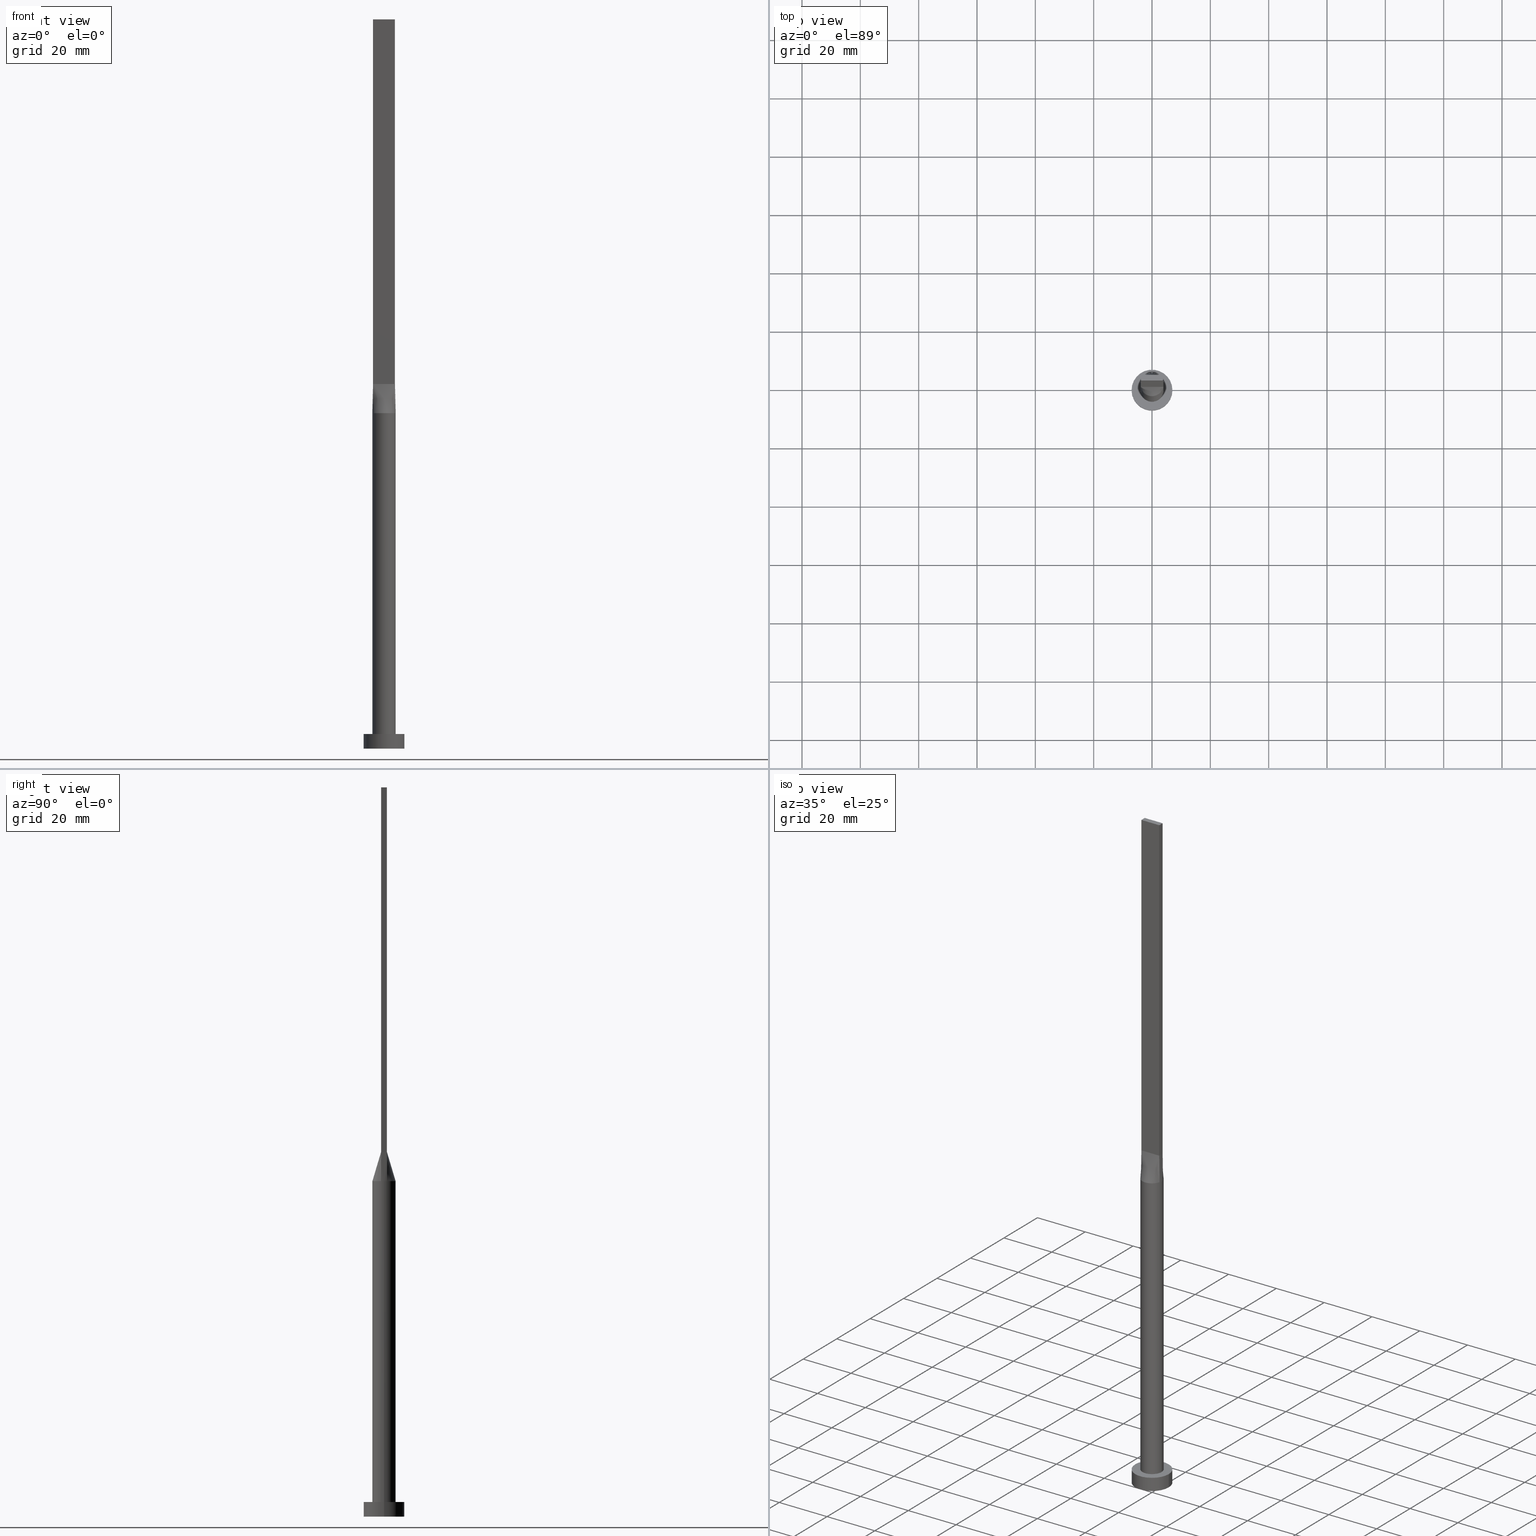
[diagram: canonical four-view strip — front | top / right | iso, engineering-drawing reading convention]
A machine part, canonical four-view strip (front | top / right | iso — engineering-drawing reading convention). The complete STEP part file that produces these views, byte-faithful:
ISO-10303-21;
HEADER;
FILE_DESCRIPTION (( 'STEP AP203' ),
    '1' );
FILE_NAME ('00b3.STEP',
    '2026-02-12T09:03:10',
    ( '' ),
    ( '' ),
    'SwSTEP 2.0',
    'SolidWorks 2019',
    '' );
FILE_SCHEMA (( 'CONFIG_CONTROL_DESIGN' ));
ENDSEC;

DATA;
#1 = CARTESIAN_POINT ( 'NONE',  ( -1.023074425454088221, 3.898373771260455811, 114.9999999999999858 ) ) ;
#2 = VERTEX_POINT ( 'NONE', #522 ) ;
#3 = VECTOR ( 'NONE', #109, 1000.000000000000000 ) ;
#4 = CC_DESIGN_APPROVAL ( #466, ( #446 ) ) ;
#5 = B_SPLINE_SURFACE_WITH_KNOTS ( 'NONE', 3, 1, ( 
 ( #477, #384 ),
 ( #261, #571 ),
 ( #424, #346 ),
 ( #387, #567 ),
 ( #27, #343 ),
 ( #88, #215 ) ),
 .UNSPECIFIED., .F., .F., .F.,
 ( 4, 2, 4 ),
 ( 2, 2 ),
 ( 0.000000000000000000, 0.5000000000000000000, 1.000000000000000000 ),
 ( 0.000000000000000000, 1.000000000000000000 ),
 .UNSPECIFIED. ) ;
#6 = CARTESIAN_POINT ( 'NONE',  ( 3.864939758404985160, 1.030650602241329539, 115.0000000000000000 ) ) ;
#7 = ORIENTED_EDGE ( 'NONE', *, *, #411, .T. ) ;
#8 = EDGE_CURVE ( 'NONE', #170, #438, #572, .T. ) ;
#9 = LINE ( 'NONE', #447, #44 ) ;
#10 = ORIENTED_EDGE ( 'NONE', *, *, #262, .F. ) ;
#11 = CARTESIAN_POINT ( 'NONE',  ( 3.750000000000000000, 1.000000000000000000, 250.0000000000000000 ) ) ;
#12 = LINE ( 'NONE', #400, #417 ) ;
#13 = CARTESIAN_POINT ( 'NONE',  ( 2.500000000000000444, -0.9999999999999995559, 125.0000000000000000 ) ) ;
#14 = EDGE_CURVE ( 'NONE', #131, #164, #575, .T. ) ;
#15 = CARTESIAN_POINT ( 'NONE',  ( 0.000000000000000000, 0.000000000000000000, 0.000000000000000000 ) ) ;
#16 = ORIENTED_EDGE ( 'NONE', *, *, #213, .F. ) ;
#17 = DIRECTION ( 'NONE',  ( -0.000000000000000000, -0.000000000000000000, -1.000000000000000000 ) ) ;
#18 = DATE_TIME_ROLE ( 'creation_date' ) ;
#19 = DIRECTION ( 'NONE',  ( 1.000000000000000000, -8.673617379884035472E-17, 0.000000000000000000 ) ) ;
#20 = APPROVAL_DATE_TIME ( #431, #323 ) ;
#21 = VECTOR ( 'NONE', #212, 1000.000000000000114 ) ;
#22 = DIRECTION ( 'NONE',  ( -1.000000000000000000, -0.000000000000000000, -0.000000000000000000 ) ) ;
#23 = ADVANCED_FACE ( 'NONE', ( #483, #451 ), #320, .T. ) ;
#24 = LINE ( 'NONE', #342, #372 ) ;
#25 = DIRECTION ( 'NONE',  ( 0.000000000000000000, 0.000000000000000000, 1.000000000000000000 ) ) ;
#26 = CARTESIAN_POINT ( 'NONE',  ( 0.000000000000000000, 0.000000000000000000, 0.000000000000000000 ) ) ;
#27 = CARTESIAN_POINT ( 'NONE',  ( -3.953459813730020311, -0.6987003947724488295, 115.0000000000000142 ) ) ;
#28 = CARTESIAN_POINT ( 'NONE',  ( 3.750000000000000000, 1.000000000000000000, 125.0000000000000000 ) ) ;
#29 = DIRECTION ( 'NONE',  ( 1.000000000000000000, 0.000000000000000000, 0.000000000000000000 ) ) ;
#30 = EDGE_CURVE ( 'NONE', #131, #538, #227, .T. ) ;
#31 = CARTESIAN_POINT ( 'NONE',  ( -3.750000000000000000, 1.000000000000000000, 125.0000000000000000 ) ) ;
#32 = VECTOR ( 'NONE', #443, 1000.000000000000114 ) ;
#33 = ORIENTED_EDGE ( 'NONE', *, *, #504, .T. ) ;
#34 = SECURITY_CLASSIFICATION ( '', '', #289 ) ;
#35 = PERSON ( 'NEUR�EN�', 'NEUR�EN�', 'NEUR�EN�', ('NEUR�EN�'), ('NEUR�EN�'), ('NEUR�EN�') ) ;
#36 = CARTESIAN_POINT ( 'NONE',  ( 0.000000000000000000, 0.000000000000000000, 5.000000000000000000 ) ) ;
#37 = LINE ( 'NONE', #389, #294 ) ;
#38 = ORIENTED_EDGE ( 'NONE', *, *, #59, .F. ) ;
#39 = LINE ( 'NONE', #82, #383 ) ;
#40 = ORIENTED_EDGE ( 'NONE', *, *, #524, .T. ) ;
#41 = CC_DESIGN_PERSON_AND_ORGANIZATION_ASSIGNMENT ( #559, #467, ( #542 ) ) ;
#42 = CARTESIAN_POINT ( 'NONE',  ( 0.000000000000000000, 0.000000000000000000, 115.0000000000000000 ) ) ;
#43 = ORIENTED_EDGE ( 'NONE', *, *, #185, .T. ) ;
#44 = VECTOR ( 'NONE', #178, 1000.000000000000000 ) ;
#45 = DIRECTION ( 'NONE',  ( -0.000000000000000000, -0.000000000000000000, -1.000000000000000000 ) ) ;
#46 = ORIENTED_EDGE ( 'NONE', *, *, #156, .F. ) ;
#47 = ORIENTED_EDGE ( 'NONE', *, *, #175, .T. ) ;
#48 = CARTESIAN_POINT ( 'NONE',  ( 3.009488128496037085, 2.672487015486669115, 114.9999999999999858 ) ) ;
#49 = EDGE_CURVE ( 'NONE', #119, #58, #9, .T. ) ;
#50 = FACE_OUTER_BOUND ( 'NONE', #281, .T. ) ;
#51 = VECTOR ( 'NONE', #45, 1000.000000000000000 ) ;
#52 = LOCAL_TIME ( 10, 3, 10.00000000000000000, #116 ) ;
#53 = B_SPLINE_SURFACE_WITH_KNOTS ( 'NONE', 3, 1, ( 
 ( #6, #224 ),
 ( #226, #183 ),
 ( #361, #271 ),
 ( #543, #135 ),
 ( #48, #231 ),
 ( #277, #498 ),
 ( #315, #398 ),
 ( #317, #580 ),
 ( #357, #537 ),
 ( #455, #534 ),
 ( #1, #187 ),
 ( #104, #324 ),
 ( #136, #275 ),
 ( #354, #144 ),
 ( #360, #57 ),
 ( #501, #176 ),
 ( #132, #491 ),
 ( #314, #489 ) ),
 .UNSPECIFIED., .F., .F., .F.,
 ( 4, 2, 2, 2, 2, 2, 2, 2, 4 ),
 ( 2, 2 ),
 ( 0.000000000000000000, 0.1250000000000000000, 0.2500000000000000000, 0.3750000000000000000, 0.5000000000000000000, 0.6250000000000000000, 0.7500000000000000000, 0.8750000000000000000, 1.000000000000000000 ),
 ( 0.000000000000000000, 1.000000000000000000 ),
 .UNSPECIFIED. ) ;
#54 = CARTESIAN_POINT ( 'NONE',  ( -3.750000000000000000, 1.000000000000000000, 250.0000000000000000 ) ) ;
#55 = VERTEX_POINT ( 'NONE', #395 ) ;
#56 = CARTESIAN_POINT ( 'NONE',  ( 3.437500000000000000, -0.9999999999999995559, 125.0000000000000000 ) ) ;
#57 = CARTESIAN_POINT ( 'NONE',  ( -2.499999999999997780, 1.000000000000000000, 125.0000000000000000 ) ) ;
#58 = VERTEX_POINT ( 'NONE', #141 ) ;
#59 = EDGE_CURVE ( 'NONE', #347, #303, #493, .T. ) ;
#60 = B_SPLINE_SURFACE_WITH_KNOTS ( 'NONE', 3, 1, ( 
 ( #434, #339 ),
 ( #118, #297 ),
 ( #233, #319 ),
 ( #274, #550 ),
 ( #145, #533 ),
 ( #450, #369 ),
 ( #326, #325 ),
 ( #66, #407 ),
 ( #459, #549 ),
 ( #101, #193 ),
 ( #238, #280 ),
 ( #544, #149 ),
 ( #502, #394 ),
 ( #108, #276 ),
 ( #221, #13 ),
 ( #579, #362 ),
 ( #410, #56 ),
 ( #235, #143 ) ),
 .UNSPECIFIED., .F., .F., .F.,
 ( 4, 2, 2, 2, 2, 2, 2, 2, 4 ),
 ( 2, 2 ),
 ( 0.000000000000000000, 0.1250000000000000000, 0.2500000000000000000, 0.3750000000000000000, 0.5000000000000000000, 0.6250000000000000000, 0.7500000000000000000, 0.8750000000000000000, 1.000000000000000000 ),
 ( 0.000000000000000000, 1.000000000000000000 ),
 .UNSPECIFIED. ) ;
#61 = CYLINDRICAL_SURFACE ( 'NONE', #305, 7.000000000000000000 ) ;
#62 = DIRECTION ( 'NONE',  ( 1.000000000000000000, 0.000000000000000000, -0.000000000000000000 ) ) ;
#63 = DIRECTION ( 'NONE',  ( -1.000000000000000000, 0.000000000000000000, 0.000000000000000000 ) ) ;
#64 = AXIS2_PLACEMENT_3D ( 'NONE', #217, #392, #251 ) ;
#65 = PERSON_AND_ORGANIZATION ( #35, #208 ) ;
#66 = CARTESIAN_POINT ( 'NONE',  ( -1.023074425454088887, -3.898373771260456255, 114.9999999999999858 ) ) ;
#67 = CALENDAR_DATE ( 2026, 12, 2 ) ;
#68 = FACE_OUTER_BOUND ( 'NONE', #210, .T. ) ;
#69 = PERSON_AND_ORGANIZATION_ROLE ( 'design_supplier' ) ;
#70 = ADVANCED_FACE ( 'NONE', ( #50 ), #53, .T. ) ;
#71 = MECHANICAL_CONTEXT ( 'NONE', #565, 'mechanical' ) ;
#72 = DIRECTION ( 'NONE',  ( 1.000000000000000000, 0.000000000000000000, 0.000000000000000000 ) ) ;
#73 = ORIENTED_EDGE ( 'NONE', *, *, #229, .T. ) ;
#74 = AXIS2_PLACEMENT_3D ( 'NONE', #42, #309, #437 ) ;
#75 = CARTESIAN_POINT ( 'NONE',  ( -3.865236553917747120, 1.030730781768519622, 115.0000000000000000 ) ) ;
#76 = DIRECTION ( 'NONE',  ( 1.000000000000000000, -8.673617379884035472E-17, 0.000000000000000000 ) ) ;
#77 = DIRECTION ( 'NONE',  ( 0.000000000000000000, 0.000000000000000000, 1.000000000000000000 ) ) ;
#78 = DIRECTION ( 'NONE',  ( 0.000000000000000000, -1.000000000000000000, 0.000000000000000000 ) ) ;
#79 = ORIENTED_EDGE ( 'NONE', *, *, #191, .F. ) ;
#80 = FACE_OUTER_BOUND ( 'NONE', #99, .T. ) ;
#81 = CALENDAR_DATE ( 2026, 12, 2 ) ;
#82 = CARTESIAN_POINT ( 'NONE',  ( -3.750000000000000000, -0.9999999999999991118, 125.0000000000000000 ) ) ;
#83 = AXIS2_PLACEMENT_3D ( 'NONE', #114, #155, #196 ) ;
#84 = ORIENTED_EDGE ( 'NONE', *, *, #576, .T. ) ;
#85 = CC_DESIGN_SECURITY_CLASSIFICATION ( #34, ( #446 ) ) ;
#86 = FACE_OUTER_BOUND ( 'NONE', #358, .T. ) ;
#87 = ORIENTED_EDGE ( 'NONE', *, *, #140, .T. ) ;
#88 = CARTESIAN_POINT ( 'NONE',  ( -3.864939758404985604, -1.030650602241328428, 115.0000000000000000 ) ) ;
#89 = EDGE_LOOP ( 'NONE', ( #84, #38, #540, #367 ) ) ;
#90 = DIRECTION ( 'NONE',  ( -1.000000000000000000, 0.000000000000000000, 0.000000000000000000 ) ) ;
#91 = ORIENTED_EDGE ( 'NONE', *, *, #140, .F. ) ;
#92 = ORIENTED_EDGE ( 'NONE', *, *, #270, .T. ) ;
#93 = VECTOR ( 'NONE', #546, 1000.000000000000000 ) ;
#94 = LINE ( 'NONE', #267, #32 ) ;
#95 = EDGE_CURVE ( 'NONE', #474, #303, #94, .T. ) ;
#96 = LINE ( 'NONE', #268, #365 ) ;
#97 = ORIENTED_EDGE ( 'NONE', *, *, #59, .T. ) ;
#98 = CARTESIAN_POINT ( 'NONE',  ( 0.000000000000000000, 0.000000000000000000, 5.000000000000000000 ) ) ;
#99 = EDGE_LOOP ( 'NONE', ( #43, #173, #499, #406 ) ) ;
#100 = AXIS2_PLACEMENT_3D ( 'NONE', #569, #526, #126 ) ;
#101 = CARTESIAN_POINT ( 'NONE',  ( 0.5121855420560003092, -3.999999999999999112, 114.9999999999999858 ) ) ;
#102 = MANIFOLD_SOLID_BREP ( 'P�idat vysunut�m5', #234 ) ;
#103 = EDGE_CURVE ( 'NONE', #164, #562, #96, .T. ) ;
#104 = CARTESIAN_POINT ( 'NONE',  ( -1.940702937457743138, 3.532374760555930582, 114.9999999999999858 ) ) ;
#105 = VERTEX_POINT ( 'NONE', #405 ) ;
#106 = CYLINDRICAL_SURFACE ( 'NONE', #150, 4.000000000000000000 ) ;
#107 = DIRECTION ( 'NONE',  ( -0.000000000000000000, -0.000000000000000000, -1.000000000000000000 ) ) ;
#108 = CARTESIAN_POINT ( 'NONE',  ( 3.009488128496036641, -2.672487015486668671, 114.9999999999999858 ) ) ;
#109 = DIRECTION ( 'NONE',  ( -1.000000000000000000, 0.000000000000000000, 0.000000000000000000 ) ) ;
#110 = AXIS2_PLACEMENT_3D ( 'NONE', #381, #334, #513 ) ;
#111 = CARTESIAN_POINT ( 'NONE',  ( -2.346407003458401253, 3.270103945996944095, 114.9999999999999858 ) ) ;
#112 = EDGE_CURVE ( 'NONE', #55, #122, #12, .T. ) ;
#113 = CALENDAR_DATE ( 2026, 12, 2 ) ;
#114 = CARTESIAN_POINT ( 'NONE',  ( 3.750000000000000000, -0.9999999999999997780, 250.0000000000000000 ) ) ;
#115 = CARTESIAN_POINT ( 'NONE',  ( 3.864939758404985160, 1.030650602241328873, 115.0000000000000000 ) ) ;
#116 = COORDINATED_UNIVERSAL_TIME_OFFSET ( 1, 0, .AHEAD. ) ;
#117 = CARTESIAN_POINT ( 'NONE',  ( 0.000000000000000000, 0.000000000000000000, 5.000000000000000000 ) ) ;
#118 = CARTESIAN_POINT ( 'NONE',  ( -3.781952206537765981, -1.341853921743402900, 114.9999999999999858 ) ) ;
#119 = VERTEX_POINT ( 'NONE', #539 ) ;
#120 = CARTESIAN_POINT ( 'NONE',  ( 3.999999999999999112, 0.3494497975066819251, 114.9999999999999858 ) ) ;
#121 = CARTESIAN_POINT ( 'NONE',  ( 7.000000000000000000, 8.572527594031473190E-16, 5.000000000000000000 ) ) ;
#122 = VERTEX_POINT ( 'NONE', #415 ) ;
#123 = CARTESIAN_POINT ( 'NONE',  ( -3.865236553917747120, 1.030730781768519622, 115.0000000000000000 ) ) ;
#124 = CARTESIAN_POINT ( 'NONE',  ( 3.865212754195084699, 1.030724393897464841, 115.0000000000000000 ) ) ;
#125 = AXIS2_PLACEMENT_3D ( 'NONE', #302, #172, #258 ) ;
#126 = DIRECTION ( 'NONE',  ( 1.000000000000000000, 0.000000000000000000, 0.000000000000000000 ) ) ;
#127 =( GEOMETRIC_REPRESENTATION_CONTEXT ( 3 ) GLOBAL_UNCERTAINTY_ASSIGNED_CONTEXT ( ( #573 ) ) GLOBAL_UNIT_ASSIGNED_CONTEXT ( ( #192, #249, #336 ) ) REPRESENTATION_CONTEXT ( 'NONE', 'WORKASPACE' ) );
#128 = ADVANCED_FACE ( 'NONE', ( #375 ), #556, .T. ) ;
#129 = CARTESIAN_POINT ( 'NONE',  ( 4.000000000000000000, -1.256865613583667397E-17, 114.9999999999999858 ) ) ;
#130 = DIRECTION ( 'NONE',  ( -0.000000000000000000, 1.000000000000000000, -0.000000000000000000 ) ) ;
#131 = VERTEX_POINT ( 'NONE', #129 ) ;
#132 = CARTESIAN_POINT ( 'NONE',  ( -3.781952206537765537, 1.341853921743403788, 115.0000000000000284 ) ) ;
#133 = VECTOR ( 'NONE', #409, 1000.000000000000000 ) ;
#134 = VECTOR ( 'NONE', #160, 1000.000000000000000 ) ;
#135 = CARTESIAN_POINT ( 'NONE',  ( 2.500000000000001776, 1.000000000000000000, 125.0000000000000000 ) ) ;
#136 = CARTESIAN_POINT ( 'NONE',  ( -2.346407003458401253, 3.270103945996944095, 114.9999999999999858 ) ) ;
#137 = ORIENTED_EDGE ( 'NONE', *, *, #363, .T. ) ;
#138 = B_SPLINE_SURFACE_WITH_KNOTS ( 'NONE', 3, 1, ( 
 ( #199, #299 ),
 ( #511, #421 ),
 ( #376, #296 ),
 ( #120, #570 ),
 ( #471, #386 ),
 ( #115, #206 ) ),
 .UNSPECIFIED., .F., .F., .F.,
 ( 4, 2, 4 ),
 ( 2, 2 ),
 ( 0.000000000000000000, 0.5000000000000000000, 1.000000000000000000 ),
 ( 0.000000000000000000, 1.000000000000000000 ),
 .UNSPECIFIED. ) ;
#139 = DIRECTION ( 'NONE',  ( -0.000000000000000000, -0.000000000000000000, -1.000000000000000000 ) ) ;
#140 = EDGE_CURVE ( 'NONE', #492, #170, #245, .T. ) ;
#141 = CARTESIAN_POINT ( 'NONE',  ( -7.000000000000000000, 0.000000000000000000, 0.000000000000000000 ) ) ;
#142 = VECTOR ( 'NONE', #530, 1000.000000000000000 ) ;
#143 = CARTESIAN_POINT ( 'NONE',  ( 3.750000000000000000, -0.9999999999999997780, 125.0000000000000000 ) ) ;
#144 = CARTESIAN_POINT ( 'NONE',  ( -2.187499999999997780, 1.000000000000000000, 125.0000000000000000 ) ) ;
#145 = CARTESIAN_POINT ( 'NONE',  ( -3.009488128496037529, -2.672487015486668227, 114.9999999999999858 ) ) ;
#146 = LINE ( 'NONE', #263, #133 ) ;
#147 = CARTESIAN_POINT ( 'NONE',  ( -3.750000000000000000, 1.000000000000000000, 250.0000000000000000 ) ) ;
#148 = ADVANCED_FACE ( 'NONE', ( #86 ), #521, .F. ) ;
#149 = CARTESIAN_POINT ( 'NONE',  ( 1.249999999999999778, -0.9999999999999995559, 125.0000000000000000 ) ) ;
#150 = AXIS2_PLACEMENT_3D ( 'NONE', #404, #285, #322 ) ;
#151 = VECTOR ( 'NONE', #22, 1000.000000000000000 ) ;
#152 = FACE_OUTER_BOUND ( 'NONE', #308, .T. ) ;
#153 = COORDINATED_UNIVERSAL_TIME_OFFSET ( 1, 0, .AHEAD. ) ;
#154 = CARTESIAN_POINT ( 'NONE',  ( 0.000000000000000000, 0.000000000000000000, 115.0000000000000000 ) ) ;
#155 = DIRECTION ( 'NONE',  ( -1.000000000000000000, 0.000000000000000000, 0.000000000000000000 ) ) ;
#156 = EDGE_CURVE ( 'NONE', #55, #438, #312, .T. ) ;
#157 = PERSON_AND_ORGANIZATION ( #35, #208 ) ;
#158 = CARTESIAN_POINT ( 'NONE',  ( 1.940702937457743582, 3.532374760555930582, 115.0000000000000000 ) ) ;
#159 = AXIS2_PLACEMENT_3D ( 'NONE', #382, #374, #72 ) ;
#160 = DIRECTION ( 'NONE',  ( 0.000000000000000000, -1.000000000000000000, 0.000000000000000000 ) ) ;
#161 = CARTESIAN_POINT ( 'NONE',  ( 3.807469879202492802, -1.015325301120664214, 120.0000000000000000 ) ) ;
#162 = PLANE ( 'NONE',  #256 ) ;
#163 = FACE_OUTER_BOUND ( 'NONE', #448, .T. ) ;
#164 = VERTEX_POINT ( 'NONE', #124 ) ;
#165 = CARTESIAN_POINT ( 'NONE',  ( -3.267840578657194239, 2.338604872288698289, 114.9999999999999858 ) ) ;
#166 = CARTESIAN_POINT ( 'NONE',  ( 3.750000000000000000, 1.000000000000000000, 250.0000000000000000 ) ) ;
#167 = ORIENTED_EDGE ( 'NONE', *, *, #397, .F. ) ;
#168 = EDGE_CURVE ( 'NONE', #474, #105, #218, .T. ) ;
#169 = DIRECTION ( 'NONE',  ( 0.000000000000000000, -0.000000000000000000, -1.000000000000000000 ) ) ;
#170 = VERTEX_POINT ( 'NONE', #426 ) ;
#171 = DESIGN_CONTEXT ( 'detailed design', #449, 'design' ) ;
#172 = DIRECTION ( 'NONE',  ( 0.000000000000000000, 0.000000000000000000, 1.000000000000000000 ) ) ;
#173 = ORIENTED_EDGE ( 'NONE', *, *, #340, .F. ) ;
#174 = LINE ( 'NONE', #11, #3 ) ;
#175 = EDGE_CURVE ( 'NONE', #105, #506, #37, .T. ) ;
#176 = CARTESIAN_POINT ( 'NONE',  ( -3.124999999999998668, 1.000000000000000000, 125.0000000000000000 ) ) ;
#177 = ORIENTED_EDGE ( 'NONE', *, *, #333, .T. ) ;
#178 = DIRECTION ( 'NONE',  ( -0.000000000000000000, -0.000000000000000000, -1.000000000000000000 ) ) ;
#179 = ORIENTED_EDGE ( 'NONE', *, *, #524, .F. ) ;
#180 = AXIS2_PLACEMENT_3D ( 'NONE', #166, #78, #169 ) ;
#181 = APPROVAL_PERSON_ORGANIZATION ( #203, #323, #241 ) ;
#182 = DIRECTION ( 'NONE',  ( 0.000000000000000000, 1.000000000000000000, 0.000000000000000000 ) ) ;
#183 = CARTESIAN_POINT ( 'NONE',  ( 3.437500000000000444, 1.000000000000000000, 125.0000000000000000 ) ) ;
#184 = ORIENTED_EDGE ( 'NONE', *, *, #49, .F. ) ;
#185 = EDGE_CURVE ( 'NONE', #438, #562, #209, .T. ) ;
#186 = CARTESIAN_POINT ( 'NONE',  ( -3.750000000000000000, 1.000000000000000000, 250.0000000000000000 ) ) ;
#187 = CARTESIAN_POINT ( 'NONE',  ( -0.6249999999999966693, 1.000000000000000000, 125.0000000000000000 ) ) ;
#188 = VECTOR ( 'NONE', #577, 1000.000000000000000 ) ;
#189 = CARTESIAN_POINT ( 'NONE',  ( 3.750000000000000000, 1.000000000000000000, 250.0000000000000000 ) ) ;
#190 = FACE_OUTER_BOUND ( 'NONE', #259, .T. ) ;
#191 = EDGE_CURVE ( 'NONE', #303, #393, #484, .T. ) ;
#192 =( LENGTH_UNIT ( ) NAMED_UNIT ( * ) SI_UNIT ( .MILLI., .METRE. ) );
#193 = CARTESIAN_POINT ( 'NONE',  ( 0.3125000000000000000, -0.9999999999999995559, 125.0000000000000000 ) ) ;
#194 = SHAPE_DEFINITION_REPRESENTATION ( #273, #454 ) ;
#195 = APPLICATION_PROTOCOL_DEFINITION ( 'international standard', 'config_control_design', 1994, #565 ) ;
#196 = DIRECTION ( 'NONE',  ( 0.000000000000000000, 0.000000000000000000, 1.000000000000000000 ) ) ;
#197 = AXIS2_PLACEMENT_3D ( 'NONE', #147, #246, #205 ) ;
#198 = AXIS2_PLACEMENT_3D ( 'NONE', #290, #25, #416 ) ;
#199 = CARTESIAN_POINT ( 'NONE',  ( 3.864939758404985160, -1.030650602241329539, 115.0000000000000000 ) ) ;
#200 = PRODUCT_DEFINITION ( 'NEZN�M�', '', #446, #171 ) ;
#201 = PERSON_AND_ORGANIZATION ( #35, #208 ) ;
#202 = CARTESIAN_POINT ( 'NONE',  ( 3.781952206537764205, 1.341853921743403788, 114.9999999999999858 ) ) ;
#203 = PERSON_AND_ORGANIZATION ( #35, #208 ) ;
#204 = PLANE ( 'NONE',  #180 ) ;
#205 = DIRECTION ( 'NONE',  ( -0.000000000000000000, 0.000000000000000000, -1.000000000000000000 ) ) ;
#206 = CARTESIAN_POINT ( 'NONE',  ( 3.750000000000000000, 1.000000000000000000, 125.0000000000000000 ) ) ;
#207 = AXIS2_PLACEMENT_3D ( 'NONE', #564, #554, #243 ) ;
#208 = ORGANIZATION ( 'NEUR�EN�', 'NEUR�EN�', '' ) ;
#209 = LINE ( 'NONE', #351, #515 ) ;
#210 = EDGE_LOOP ( 'NONE', ( #341, #318, #390, #352, #272 ) ) ;
#211 = DIRECTION ( 'NONE',  ( 1.000000000000000000, 0.000000000000000000, -0.000000000000000000 ) ) ;
#212 = DIRECTION ( 'NONE',  ( -0.01149316269309400701, -0.003064843384825017159, -0.9999292544707033548 ) ) ;
#213 = EDGE_CURVE ( 'NONE', #393, #438, #39, .T. ) ;
#214 = ORIENTED_EDGE ( 'NONE', *, *, #112, .T. ) ;
#215 = CARTESIAN_POINT ( 'NONE',  ( -3.750000000000000000, -0.9999999999999991118, 125.0000000000000000 ) ) ;
#216 = ORIENTED_EDGE ( 'NONE', *, *, #8, .T. ) ;
#217 = CARTESIAN_POINT ( 'NONE',  ( -3.750000000000000000, -0.9999999999999991118, 250.0000000000000000 ) ) ;
#218 = CIRCLE ( 'NONE', #125, 4.000000000000000000 ) ;
#219 = ORIENTED_EDGE ( 'NONE', *, *, #49, .T. ) ;
#220 = PRODUCT_RELATED_PRODUCT_CATEGORY ( 'detail', '', ( #542 ) ) ;
#221 = CARTESIAN_POINT ( 'NONE',  ( 3.267840578657194239, -2.338604872288699177, 114.9999999999999858 ) ) ;
#222 = ORIENTED_EDGE ( 'NONE', *, *, #95, .T. ) ;
#223 = ORIENTED_EDGE ( 'NONE', *, *, #316, .T. ) ;
#224 = CARTESIAN_POINT ( 'NONE',  ( 3.750000000000000000, 1.000000000000000000, 125.0000000000000000 ) ) ;
#225 = ORIENTED_EDGE ( 'NONE', *, *, #95, .F. ) ;
#226 = CARTESIAN_POINT ( 'NONE',  ( 3.781952206537764205, 1.341853921743403788, 114.9999999999999858 ) ) ;
#227 = LINE ( 'NONE', #402, #93 ) ;
#228 = VERTEX_POINT ( 'NONE', #121 ) ;
#229 = EDGE_CURVE ( 'NONE', #393, #492, #248, .T. ) ;
#230 = CYLINDRICAL_SURFACE ( 'NONE', #283, 7.000000000000000000 ) ;
#231 = CARTESIAN_POINT ( 'NONE',  ( 2.187500000000002220, 1.000000000000000000, 125.0000000000000000 ) ) ;
#232 = ORIENTED_EDGE ( 'NONE', *, *, #175, .F. ) ;
#233 = CARTESIAN_POINT ( 'NONE',  ( -3.653499896451231521, -1.673258289339057514, 115.0000000000000142 ) ) ;
#234 = CLOSED_SHELL ( 'NONE', ( #300, #292, #359, #23, #568, #128, #279, #371, #242, #70, #255, #541, #148, #435, #481 ) ) ;
#235 = CARTESIAN_POINT ( 'NONE',  ( 3.864939758404985604, -1.030650602241328873, 115.0000000000000000 ) ) ;
#236 = APPROVAL ( #503, 'NEUR�EN�' ) ;
#237 = COORDINATED_UNIVERSAL_TIME_OFFSET ( 1, 0, .AHEAD. ) ;
#238 = CARTESIAN_POINT ( 'NONE',  ( 1.023074425454087555, -3.898373771260455811, 114.9999999999999858 ) ) ;
#239 = CARTESIAN_POINT ( 'NONE',  ( -3.009488128496037529, 2.672487015486668671, 114.9999999999999858 ) ) ;
#240 = ORIENTED_EDGE ( 'NONE', *, *, #442, .F. ) ;
#241 = APPROVAL_ROLE ( '' ) ;
#242 = ADVANCED_FACE ( 'NONE', ( #163 ), #5, .T. ) ;
#243 = DIRECTION ( 'NONE',  ( 1.000000000000000000, -6.217248937900876626E-15, 0.000000000000000000 ) ) ;
#244 = ORIENTED_EDGE ( 'NONE', *, *, #397, .T. ) ;
#245 = CIRCLE ( 'NONE', #74, 4.000000000000000000 ) ;
#246 = DIRECTION ( 'NONE',  ( 1.000000000000000000, 0.000000000000000000, -0.000000000000000000 ) ) ;
#247 = CARTESIAN_POINT ( 'NONE',  ( 3.865212754195084699, 1.030724393897464841, 115.0000000000000000 ) ) ;
#248 = LINE ( 'NONE', #349, #21 ) ;
#249 =( NAMED_UNIT ( * ) PLANE_ANGLE_UNIT ( ) SI_UNIT ( $, .RADIAN. ) );
#250 = CARTESIAN_POINT ( 'NONE',  ( 3.653499896451231521, 1.673258289339057958, 115.0000000000000142 ) ) ;
#251 = DIRECTION ( 'NONE',  ( -1.000000000000000000, 8.673617379884035472E-17, 0.000000000000000000 ) ) ;
#252 = ORIENTED_EDGE ( 'NONE', *, *, #460, .F. ) ;
#253 = CARTESIAN_POINT ( 'NONE',  ( -0.5121855420560009753, 4.000000000000000888, 114.9999999999999858 ) ) ;
#254 = PERSON_AND_ORGANIZATION_ROLE ( 'classification_officer' ) ;
#255 = ADVANCED_FACE ( 'NONE', ( #482 ), #204, .F. ) ;
#256 = AXIS2_PLACEMENT_3D ( 'NONE', #413, #291, #211 ) ;
#257 = CC_DESIGN_APPROVAL ( #323, ( #34 ) ) ;
#258 = DIRECTION ( 'NONE',  ( 1.000000000000000000, 0.000000000000000000, 0.000000000000000000 ) ) ;
#259 = EDGE_LOOP ( 'NONE', ( #494, #298, #344, #232, #581, #179 ) ) ;
#260 = FACE_OUTER_BOUND ( 'NONE', #266, .T. ) ;
#261 = CARTESIAN_POINT ( 'NONE',  ( -3.953459813730019423, 0.6987003947724497177, 114.9999999999999858 ) ) ;
#262 = EDGE_CURVE ( 'NONE', #105, #492, #497, .T. ) ;
#263 = CARTESIAN_POINT ( 'NONE',  ( 7.000000000000000000, 8.572527594031473190E-16, 5.000000000000000000 ) ) ;
#264 = VECTOR ( 'NONE', #139, 1000.000000000000000 ) ;
#265 = ORIENTED_EDGE ( 'NONE', *, *, #191, .T. ) ;
#266 = EDGE_LOOP ( 'NONE', ( #87, #216, #16, #73 ) ) ;
#267 = CARTESIAN_POINT ( 'NONE',  ( -3.807469879202492802, 1.015325301120663992, 120.0000000000000000 ) ) ;
#268 = CARTESIAN_POINT ( 'NONE',  ( 3.807469879202492358, 1.015325301120664436, 120.0000000000000000 ) ) ;
#269 = EDGE_LOOP ( 'NONE', ( #240, #223, #244, #184 ) ) ;
#270 = EDGE_CURVE ( 'NONE', #347, #2, #307, .T. ) ;
#271 = CARTESIAN_POINT ( 'NONE',  ( 3.125000000000000888, 1.000000000000000000, 125.0000000000000000 ) ) ;
#272 = ORIENTED_EDGE ( 'NONE', *, *, #8, .F. ) ;
#273 = PRODUCT_DEFINITION_SHAPE ( 'NONE', 'NONE',  #200 ) ;
#274 = CARTESIAN_POINT ( 'NONE',  ( -3.267840578657194239, -2.338604872288696956, 114.9999999999999858 ) ) ;
#275 = CARTESIAN_POINT ( 'NONE',  ( -1.562499999999997113, 1.000000000000000000, 125.0000000000000000 ) ) ;
#276 = CARTESIAN_POINT ( 'NONE',  ( 2.187500000000000000, -0.9999999999999995559, 125.0000000000000000 ) ) ;
#277 = CARTESIAN_POINT ( 'NONE',  ( 2.346407003458400808, 3.270103945996944983, 114.9999999999999858 ) ) ;
#278 = ORIENTED_EDGE ( 'NONE', *, *, #168, .T. ) ;
#279 = ADVANCED_FACE ( 'NONE', ( #260 ), #60, .T. ) ;
#280 = CARTESIAN_POINT ( 'NONE',  ( 0.6249999999999998890, -0.9999999999999995559, 125.0000000000000000 ) ) ;
#281 = EDGE_LOOP ( 'NONE', ( #40, #222, #529, #385 ) ) ;
#282 = COORDINATED_UNIVERSAL_TIME_OFFSET ( 1, 0, .AHEAD. ) ;
#283 = AXIS2_PLACEMENT_3D ( 'NONE', #495, #17, #90 ) ;
#284 = LOCAL_TIME ( 10, 3, 10.00000000000000000, #237 ) ;
#285 = DIRECTION ( 'NONE',  ( -0.000000000000000000, -0.000000000000000000, -1.000000000000000000 ) ) ;
#286 = ORIENTED_EDGE ( 'NONE', *, *, #411, .F. ) ;
#287 = APPROVAL_DATE_TIME ( #412, #236 ) ;
#288 = DIRECTION ( 'NONE',  ( 0.000000000000000000, 0.000000000000000000, 1.000000000000000000 ) ) ;
#289 = SECURITY_CLASSIFICATION_LEVEL ( 'unclassified' ) ;
#290 = CARTESIAN_POINT ( 'NONE',  ( 0.000000000000000000, 0.000000000000000000, 0.000000000000000000 ) ) ;
#291 = DIRECTION ( 'NONE',  ( 0.000000000000000000, 0.000000000000000000, 1.000000000000000000 ) ) ;
#292 = ADVANCED_FACE ( 'NONE', ( #486 ), #230, .T. ) ;
#293 = DIRECTION ( 'NONE',  ( 1.000000000000000000, 0.000000000000000000, 0.000000000000000000 ) ) ;
#294 = VECTOR ( 'NONE', #518, 1000.000000000000000 ) ;
#295 = PERSON_AND_ORGANIZATION_ROLE ( 'creator' ) ;
#296 = CARTESIAN_POINT ( 'NONE',  ( 3.749999999999999556, -0.3333333333333329818, 125.0000000000000000 ) ) ;
#297 = CARTESIAN_POINT ( 'NONE',  ( -3.437499999999999556, -0.9999999999999991118, 125.0000000000000000 ) ) ;
#298 = ORIENTED_EDGE ( 'NONE', *, *, #30, .T. ) ;
#299 = CARTESIAN_POINT ( 'NONE',  ( 3.750000000000000000, -1.000000000000000000, 125.0000000000000000 ) ) ;
#300 = ADVANCED_FACE ( 'NONE', ( #190 ), #106, .T. ) ;
#301 = DATE_TIME_ROLE ( 'classification_date' ) ;
#302 = CARTESIAN_POINT ( 'NONE',  ( 0.000000000000000000, 0.000000000000000000, 115.0000000000000000 ) ) ;
#303 = VERTEX_POINT ( 'NONE', #439 ) ;
#304 = CARTESIAN_POINT ( 'NONE',  ( -3.653499896451231521, 1.673258289339058180, 115.0000000000000284 ) ) ;
#305 = AXIS2_PLACEMENT_3D ( 'NONE', #366, #547, #63 ) ;
#306 = CC_DESIGN_APPROVAL ( #236, ( #200 ) ) ;
#307 = LINE ( 'NONE', #561, #134 ) ;
#308 = EDGE_LOOP ( 'NONE', ( #177, #92, #578, #214 ) ) ;
#309 = DIRECTION ( 'NONE',  ( 0.000000000000000000, 0.000000000000000000, 1.000000000000000000 ) ) ;
#310 = CC_DESIGN_PERSON_AND_ORGANIZATION_ASSIGNMENT ( #463, #295, ( #446 ) ) ;
#311 = ORIENTED_EDGE ( 'NONE', *, *, #442, .T. ) ;
#312 = LINE ( 'NONE', #432, #188 ) ;
#313 = EDGE_LOOP ( 'NONE', ( #478, #252, #91, #10, #47, #33 ) ) ;
#314 = CARTESIAN_POINT ( 'NONE',  ( -3.864939758404985604, 1.030650602241328428, 115.0000000000000000 ) ) ;
#315 = CARTESIAN_POINT ( 'NONE',  ( 1.940702937457743582, 3.532374760555930582, 115.0000000000000000 ) ) ;
#316 = EDGE_CURVE ( 'NONE', #228, #436, #146, .T. ) ;
#317 = CARTESIAN_POINT ( 'NONE',  ( 1.023074425454087999, 3.898373771260456255, 114.9999999999999858 ) ) ;
#318 = ORIENTED_EDGE ( 'NONE', *, *, #14, .T. ) ;
#319 = CARTESIAN_POINT ( 'NONE',  ( -3.124999999999999556, -0.9999999999999991118, 125.0000000000000000 ) ) ;
#320 = PLANE ( 'NONE',  #545 ) ;
#321 = VECTOR ( 'NONE', #107, 1000.000000000000000 ) ;
#322 = DIRECTION ( 'NONE',  ( -1.000000000000000000, 0.000000000000000000, 0.000000000000000000 ) ) ;
#323 = APPROVAL ( #476, 'NEUR�EN�' ) ;
#324 = CARTESIAN_POINT ( 'NONE',  ( -1.249999999999996669, 1.000000000000000000, 125.0000000000000000 ) ) ;
#325 = CARTESIAN_POINT ( 'NONE',  ( -1.250000000000000222, -0.9999999999999993339, 125.0000000000000000 ) ) ;
#326 = CARTESIAN_POINT ( 'NONE',  ( -1.940702937457744692, -3.532374760555929250, 115.0000000000000000 ) ) ;
#327 = APPLICATION_PROTOCOL_DEFINITION ( 'international standard', 'config_control_design', 1994, #449 ) ;
#328 = CIRCLE ( 'NONE', #445, 4.000000000000000000 ) ;
#329 = LOCAL_TIME ( 10, 3, 10.00000000000000000, #153 ) ;
#330 = CARTESIAN_POINT ( 'NONE',  ( 3.267840578657193795, 2.338604872288698289, 114.9999999999999858 ) ) ;
#331 = CALENDAR_DATE ( 2026, 12, 2 ) ;
#332 = CARTESIAN_POINT ( 'NONE',  ( 0.000000000000000000, 0.000000000000000000, 5.000000000000000000 ) ) ;
#333 = EDGE_CURVE ( 'NONE', #122, #347, #174, .T. ) ;
#334 = DIRECTION ( 'NONE',  ( 0.000000000000000000, 0.000000000000000000, 1.000000000000000000 ) ) ;
#335 = DIRECTION ( 'NONE',  ( 1.000000000000000000, 0.000000000000000000, 0.000000000000000000 ) ) ;
#336 =( NAMED_UNIT ( * ) SI_UNIT ( $, .STERADIAN. ) SOLID_ANGLE_UNIT ( ) );
#337 = CARTESIAN_POINT ( 'NONE',  ( -3.865220763612065902, -1.030726602927787949, 115.0000000000000000 ) ) ;
#338 = CIRCLE ( 'NONE', #356, 7.000000000000000000 ) ;
#339 = CARTESIAN_POINT ( 'NONE',  ( -3.750000000000000000, -0.9999999999999991118, 125.0000000000000000 ) ) ;
#340 = EDGE_CURVE ( 'NONE', #122, #562, #456, .T. ) ;
#341 = ORIENTED_EDGE ( 'NONE', *, *, #460, .T. ) ;
#342 = CARTESIAN_POINT ( 'NONE',  ( -3.750000000000000000, -0.9999999999999991118, 250.0000000000000000 ) ) ;
#343 = CARTESIAN_POINT ( 'NONE',  ( -3.749999999999999556, -0.6666666666666658525, 125.0000000000000000 ) ) ;
#344 = ORIENTED_EDGE ( 'NONE', *, *, #391, .T. ) ;
#345 = CARTESIAN_POINT ( 'NONE',  ( 4.000000000000000000, 4.898587196589412829E-16, 5.000000000000000000 ) ) ;
#346 = CARTESIAN_POINT ( 'NONE',  ( -3.749999999999999556, 0.3333333333333337034, 125.0000000000000000 ) ) ;
#347 = VERTEX_POINT ( 'NONE', #186 ) ;
#348 = EDGE_CURVE ( 'NONE', #2, #393, #500, .T. ) ;
#349 = CARTESIAN_POINT ( 'NONE',  ( -3.807469879202492802, -1.015325301120663548, 120.0000000000000000 ) ) ;
#350 = ORIENTED_EDGE ( 'NONE', *, *, #504, .F. ) ;
#351 = CARTESIAN_POINT ( 'NONE',  ( 3.750000000000000000, 1.000000000000000000, 125.0000000000000000 ) ) ;
#352 = ORIENTED_EDGE ( 'NONE', *, *, #185, .F. ) ;
#353 = CARTESIAN_POINT ( 'NONE',  ( -3.750000000000000000, -0.9999999999999991118, 250.0000000000000000 ) ) ;
#354 = CARTESIAN_POINT ( 'NONE',  ( -3.009488128496037529, 2.672487015486668671, 114.9999999999999858 ) ) ;
#355 = EDGE_LOOP ( 'NONE', ( #265, #532, #441, #97 ) ) ;
#356 = AXIS2_PLACEMENT_3D ( 'NONE', #15, #368, #505 ) ;
#357 = CARTESIAN_POINT ( 'NONE',  ( 0.5121855420560009753, 4.000000000000000888, 115.0000000000000142 ) ) ;
#358 = EDGE_LOOP ( 'NONE', ( #396, #46, #440, #419 ) ) ;
#359 = ADVANCED_FACE ( 'NONE', ( #453 ), #61, .T. ) ;
#360 = CARTESIAN_POINT ( 'NONE',  ( -3.267840578657194239, 2.338604872288698289, 114.9999999999999858 ) ) ;
#361 = CARTESIAN_POINT ( 'NONE',  ( 3.653499896451231521, 1.673258289339057958, 115.0000000000000142 ) ) ;
#362 = CARTESIAN_POINT ( 'NONE',  ( 3.125000000000000000, -0.9999999999999995559, 125.0000000000000000 ) ) ;
#363 = EDGE_CURVE ( 'NONE', #58, #436, #338, .T. ) ;
#364 = DIRECTION ( 'NONE',  ( 0.000000000000000000, 0.000000000000000000, 1.000000000000000000 ) ) ;
#365 = VECTOR ( 'NONE', #444, 1000.000000000000114 ) ;
#366 = CARTESIAN_POINT ( 'NONE',  ( 0.000000000000000000, 0.000000000000000000, 5.000000000000000000 ) ) ;
#367 = ORIENTED_EDGE ( 'NONE', *, *, #340, .T. ) ;
#368 = DIRECTION ( 'NONE',  ( 0.000000000000000000, 0.000000000000000000, 1.000000000000000000 ) ) ;
#369 = CARTESIAN_POINT ( 'NONE',  ( -1.562500000000000000, -0.9999999999999993339, 125.0000000000000000 ) ) ;
#370 = APPROVAL_STATUS ( 'not_yet_approved' ) ;
#371 = ADVANCED_FACE ( 'NONE', ( #68 ), #138, .T. ) ;
#372 = VECTOR ( 'NONE', #19, 1000.000000000000000 ) ;
#373 = APPROVAL_PERSON_ORGANIZATION ( #201, #236, #377 ) ;
#374 = DIRECTION ( 'NONE',  ( 0.000000000000000000, 0.000000000000000000, 1.000000000000000000 ) ) ;
#375 = FACE_OUTER_BOUND ( 'NONE', #313, .T. ) ;
#376 = CARTESIAN_POINT ( 'NONE',  ( 4.000000000000000000, -0.3494497975066829798, 114.9999999999999858 ) ) ;
#377 = APPROVAL_ROLE ( '' ) ;
#378 = CARTESIAN_POINT ( 'NONE',  ( 2.346407003458400808, 3.270103945996944983, 114.9999999999999858 ) ) ;
#379 = CC_DESIGN_DATE_AND_TIME_ASSIGNMENT ( #566, #301, ( #34 ) ) ;
#380 = DIRECTION ( 'NONE',  ( 0.000000000000000000, 0.000000000000000000, 1.000000000000000000 ) ) ;
#381 = CARTESIAN_POINT ( 'NONE',  ( 0.000000000000000000, 0.000000000000000000, 0.000000000000000000 ) ) ;
#382 = CARTESIAN_POINT ( 'NONE',  ( 0.000000000000000000, 0.000000000000000000, 5.000000000000000000 ) ) ;
#383 = VECTOR ( 'NONE', #76, 1000.000000000000000 ) ;
#384 = CARTESIAN_POINT ( 'NONE',  ( -3.750000000000000000, 1.000000000000000000, 125.0000000000000000 ) ) ;
#385 = ORIENTED_EDGE ( 'NONE', *, *, #103, .F. ) ;
#386 = CARTESIAN_POINT ( 'NONE',  ( 3.749999999999999556, 0.6666666666666668517, 125.0000000000000000 ) ) ;
#387 = CARTESIAN_POINT ( 'NONE',  ( -3.999999999999999112, -0.3494497975066816475, 114.9999999999999858 ) ) ;
#388 = ORIENTED_EDGE ( 'NONE', *, *, #391, .F. ) ;
#389 = CARTESIAN_POINT ( 'NONE',  ( -4.000000000000000000, 0.000000000000000000, 115.0000000000000000 ) ) ;
#390 = ORIENTED_EDGE ( 'NONE', *, *, #103, .T. ) ;
#391 = EDGE_CURVE ( 'NONE', #538, #506, #527, .T. ) ;
#392 = DIRECTION ( 'NONE',  ( 8.673617379884035472E-17, 1.000000000000000000, -0.000000000000000000 ) ) ;
#393 = VERTEX_POINT ( 'NONE', #514 ) ;
#394 = CARTESIAN_POINT ( 'NONE',  ( 1.562500000000000000, -0.9999999999999995559, 125.0000000000000000 ) ) ;
#395 = CARTESIAN_POINT ( 'NONE',  ( 3.750000000000000000, -0.9999999999999997780, 250.0000000000000000 ) ) ;
#396 = ORIENTED_EDGE ( 'NONE', *, *, #213, .T. ) ;
#397 = EDGE_CURVE ( 'NONE', #436, #58, #457, .T. ) ;
#398 = CARTESIAN_POINT ( 'NONE',  ( 1.250000000000003109, 1.000000000000000000, 125.0000000000000000 ) ) ;
#399 = CIRCLE ( 'NONE', #159, 7.000000000000000000 ) ;
#400 = CARTESIAN_POINT ( 'NONE',  ( 3.750000000000000000, -0.9999999999999997780, 250.0000000000000000 ) ) ;
#401 = ORIENTED_EDGE ( 'NONE', *, *, #229, .F. ) ;
#402 = CARTESIAN_POINT ( 'NONE',  ( 4.000000000000000000, 4.898587196589412829E-16, 115.0000000000000000 ) ) ;
#403 = CC_DESIGN_DATE_AND_TIME_ASSIGNMENT ( #458, #18, ( #200 ) ) ;
#404 = CARTESIAN_POINT ( 'NONE',  ( 0.000000000000000000, 0.000000000000000000, 115.0000000000000000 ) ) ;
#405 = CARTESIAN_POINT ( 'NONE',  ( -4.000000000000000000, -2.459132308497027359E-16, 114.9999999999999858 ) ) ;
#406 = ORIENTED_EDGE ( 'NONE', *, *, #156, .T. ) ;
#407 = CARTESIAN_POINT ( 'NONE',  ( -0.6250000000000001110, -0.9999999999999993339, 125.0000000000000000 ) ) ;
#408 = AXIS2_PLACEMENT_3D ( 'NONE', #26, #516, #293 ) ;
#409 = DIRECTION ( 'NONE',  ( -0.000000000000000000, -0.000000000000000000, -1.000000000000000000 ) ) ;
#410 = CARTESIAN_POINT ( 'NONE',  ( 3.781952206537765981, -1.341853921743404232, 115.0000000000000284 ) ) ;
#411 = EDGE_CURVE ( 'NONE', #119, #228, #399, .T. ) ;
#412 = DATE_AND_TIME ( #331, #552 ) ;
#413 = CARTESIAN_POINT ( 'NONE',  ( 0.000000000000000000, 0.000000000000000000, 250.0000000000000000 ) ) ;
#414 = COORDINATED_UNIVERSAL_TIME_OFFSET ( 1, 0, .AHEAD. ) ;
#415 = CARTESIAN_POINT ( 'NONE',  ( 3.750000000000000000, 1.000000000000000000, 250.0000000000000000 ) ) ;
#416 = DIRECTION ( 'NONE',  ( 1.000000000000000000, 0.000000000000000000, 0.000000000000000000 ) ) ;
#417 = VECTOR ( 'NONE', #182, 1000.000000000000000 ) ;
#418 = CARTESIAN_POINT ( 'NONE',  ( -4.000000000000000000, 0.000000000000000000, 5.000000000000000000 ) ) ;
#419 = ORIENTED_EDGE ( 'NONE', *, *, #348, .T. ) ;
#420 = PLANE ( 'NONE',  #110 ) ;
#421 = CARTESIAN_POINT ( 'NONE',  ( 3.749999999999999556, -0.6666666666666664076, 125.0000000000000000 ) ) ;
#422 = CC_DESIGN_PERSON_AND_ORGANIZATION_ASSIGNMENT ( #423, #254, ( #34 ) ) ;
#423 = PERSON_AND_ORGANIZATION ( #35, #208 ) ;
#424 = CARTESIAN_POINT ( 'NONE',  ( -4.000000000000000000, 0.3494497975066826467, 114.9999999999999858 ) ) ;
#425 = PLANE ( 'NONE',  #83 ) ;
#426 = CARTESIAN_POINT ( 'NONE',  ( 3.865244591400370577, -1.030732999276501527, 115.0000000000000000 ) ) ;
#427 = ORIENTED_EDGE ( 'NONE', *, *, #363, .F. ) ;
#428 = CARTESIAN_POINT ( 'NONE',  ( -1.023074425454088221, 3.898373771260455811, 114.9999999999999858 ) ) ;
#429 = AXIS2_PLACEMENT_3D ( 'NONE', #154, #473, #574 ) ;
#430 = LOCAL_TIME ( 10, 3, 10.00000000000000000, #414 ) ;
#431 = DATE_AND_TIME ( #555, #430 ) ;
#432 = CARTESIAN_POINT ( 'NONE',  ( 3.750000000000000000, -0.9999999999999997780, 250.0000000000000000 ) ) ;
#433 = ORIENTED_EDGE ( 'NONE', *, *, #316, .F. ) ;
#434 = CARTESIAN_POINT ( 'NONE',  ( -3.864939758404985604, -1.030650602241328206, 115.0000000000000000 ) ) ;
#435 = ADVANCED_FACE ( 'NONE', ( #80 ), #425, .F. ) ;
#436 = VERTEX_POINT ( 'NONE', #558 ) ;
#437 = DIRECTION ( 'NONE',  ( 1.000000000000000000, 0.000000000000000000, 0.000000000000000000 ) ) ;
#438 = VERTEX_POINT ( 'NONE', #560 ) ;
#439 = CARTESIAN_POINT ( 'NONE',  ( -3.750000000000000000, 1.000000000000000000, 125.0000000000000000 ) ) ;
#440 = ORIENTED_EDGE ( 'NONE', *, *, #496, .F. ) ;
#441 = ORIENTED_EDGE ( 'NONE', *, *, #270, .F. ) ;
#442 = EDGE_CURVE ( 'NONE', #228, #119, #488, .T. ) ;
#443 = DIRECTION ( 'NONE',  ( 0.01149316269309400701, -0.003064843384824952107, 0.9999292544707033548 ) ) ;
#444 = DIRECTION ( 'NONE',  ( -0.01149316269309396538, -0.003064843384824995909, 0.9999292544707033548 ) ) ;
#445 = AXIS2_PLACEMENT_3D ( 'NONE', #332, #288, #335 ) ;
#446 = PRODUCT_DEFINITION_FORMATION_WITH_SPECIFIED_SOURCE ( 'LIBOVOLN�', '', #542, .NOT_KNOWN. ) ;
#447 = CARTESIAN_POINT ( 'NONE',  ( -7.000000000000000000, 0.000000000000000000, 5.000000000000000000 ) ) ;
#448 = EDGE_LOOP ( 'NONE', ( #278, #490, #401, #79, #225 ) ) ;
#449 = APPLICATION_CONTEXT ( 'configuration controlled 3d designs of mechanical parts and assemblies' ) ;
#450 = CARTESIAN_POINT ( 'NONE',  ( -2.346407003458402141, -3.270103945996943651, 114.9999999999999858 ) ) ;
#451 = FACE_OUTER_BOUND ( 'NONE', #535, .T. ) ;
#452 = EDGE_LOOP ( 'NONE', ( #350, #388 ) ) ;
#453 = FACE_OUTER_BOUND ( 'NONE', #485, .T. ) ;
#454 = ADVANCED_BREP_SHAPE_REPRESENTATION ( '00b3', ( #102, #198 ), #127 ) ;
#455 = CARTESIAN_POINT ( 'NONE',  ( -0.5121855420560009753, 4.000000000000000888, 114.9999999999999858 ) ) ;
#456 = LINE ( 'NONE', #189, #51 ) ;
#457 = CIRCLE ( 'NONE', #408, 7.000000000000000000 ) ;
#458 = DATE_AND_TIME ( #67, #52 ) ;
#459 = CARTESIAN_POINT ( 'NONE',  ( -0.5121855420560018635, -4.000000000000000000, 115.0000000000000142 ) ) ;
#460 = EDGE_CURVE ( 'NONE', #170, #131, #551, .T. ) ;
#461 = PLANE ( 'NONE',  #197 ) ;
#462 = CARTESIAN_POINT ( 'NONE',  ( 3.009488128496037085, 2.672487015486669115, 114.9999999999999858 ) ) ;
#463 = PERSON_AND_ORGANIZATION ( #35, #208 ) ;
#464 = DATE_AND_TIME ( #113, #284 ) ;
#465 = DIRECTION ( 'NONE',  ( 1.000000000000000000, 0.000000000000000000, 0.000000000000000000 ) ) ;
#466 = APPROVAL ( #370, 'NEUR�EN�' ) ;
#467 = PERSON_AND_ORGANIZATION_ROLE ( 'design_owner' ) ;
#468 = AXIS2_PLACEMENT_3D ( 'NONE', #525, #380, #528 ) ;
#469 = DIRECTION ( 'NONE',  ( 0.000000000000000000, 0.000000000000000000, 1.000000000000000000 ) ) ;
#470 = FACE_OUTER_BOUND ( 'NONE', #487, .T. ) ;
#471 = CARTESIAN_POINT ( 'NONE',  ( 3.953459813730020311, 0.6987003947724492736, 115.0000000000000142 ) ) ;
#472 = APPROVAL_DATE_TIME ( #464, #466 ) ;
#473 = DIRECTION ( 'NONE',  ( -0.000000000000000000, -0.000000000000000000, -1.000000000000000000 ) ) ;
#474 = VERTEX_POINT ( 'NONE', #75 ) ;
#475 = CARTESIAN_POINT ( 'NONE',  ( 1.023074425454087999, 3.898373771260456255, 114.9999999999999858 ) ) ;
#476 = APPROVAL_STATUS ( 'not_yet_approved' ) ;
#477 = CARTESIAN_POINT ( 'NONE',  ( -3.864939758404985160, 1.030650602241329317, 115.0000000000000000 ) ) ;
#478 = ORIENTED_EDGE ( 'NONE', *, *, #30, .F. ) ;
#479 = CARTESIAN_POINT ( 'NONE',  ( -3.781952206537765537, 1.341853921743403788, 115.0000000000000284 ) ) ;
#480 = AXIS2_PLACEMENT_3D ( 'NONE', #36, #77, #29 ) ;
#481 = ADVANCED_FACE ( 'NONE', ( #152 ), #162, .T. ) ;
#482 = FACE_OUTER_BOUND ( 'NONE', #89, .T. ) ;
#483 = FACE_BOUND ( 'NONE', #452, .T. ) ;
#484 = LINE ( 'NONE', #31, #142 ) ;
#485 = EDGE_LOOP ( 'NONE', ( #433, #286, #219, #137 ) ) ;
#486 = FACE_OUTER_BOUND ( 'NONE', #269, .T. ) ;
#487 = EDGE_LOOP ( 'NONE', ( #427, #167 ) ) ;
#488 = CIRCLE ( 'NONE', #536, 7.000000000000000000 ) ;
#489 = CARTESIAN_POINT ( 'NONE',  ( -3.750000000000000000, 1.000000000000000000, 125.0000000000000000 ) ) ;
#490 = ORIENTED_EDGE ( 'NONE', *, *, #262, .T. ) ;
#491 = CARTESIAN_POINT ( 'NONE',  ( -3.437499999999999556, 1.000000000000000000, 125.0000000000000000 ) ) ;
#492 = VERTEX_POINT ( 'NONE', #337 ) ;
#493 = LINE ( 'NONE', #54, #321 ) ;
#494 = ORIENTED_EDGE ( 'NONE', *, *, #14, .F. ) ;
#495 = CARTESIAN_POINT ( 'NONE',  ( 0.000000000000000000, 0.000000000000000000, 5.000000000000000000 ) ) ;
#496 = EDGE_CURVE ( 'NONE', #2, #55, #24, .T. ) ;
#497 = CIRCLE ( 'NONE', #468, 4.000000000000000000 ) ;
#498 = CARTESIAN_POINT ( 'NONE',  ( 1.562500000000002887, 1.000000000000000000, 125.0000000000000000 ) ) ;
#499 = ORIENTED_EDGE ( 'NONE', *, *, #112, .F. ) ;
#500 = LINE ( 'NONE', #353, #264 ) ;
#501 = CARTESIAN_POINT ( 'NONE',  ( -3.653499896451231521, 1.673258289339058180, 115.0000000000000284 ) ) ;
#502 = CARTESIAN_POINT ( 'NONE',  ( 2.346407003458400364, -3.270103945996944095, 114.9999999999999858 ) ) ;
#503 = APPROVAL_STATUS ( 'not_yet_approved' ) ;
#504 = EDGE_CURVE ( 'NONE', #506, #538, #328, .T. ) ;
#505 = DIRECTION ( 'NONE',  ( 1.000000000000000000, 0.000000000000000000, 0.000000000000000000 ) ) ;
#506 = VERTEX_POINT ( 'NONE', #418 ) ;
#507 = APPROVAL_PERSON_ORGANIZATION ( #65, #466, #510 ) ;
#508 = LINE ( 'NONE', #553, #151 ) ;
#509 = CARTESIAN_POINT ( 'NONE',  ( -1.940702937457743138, 3.532374760555930582, 114.9999999999999858 ) ) ;
#510 = APPROVAL_ROLE ( '' ) ;
#511 = CARTESIAN_POINT ( 'NONE',  ( 3.953459813730019423, -0.6987003947724502728, 114.9999999999999858 ) ) ;
#512 = CC_DESIGN_PERSON_AND_ORGANIZATION_ASSIGNMENT ( #157, #557, ( #200 ) ) ;
#513 = DIRECTION ( 'NONE',  ( 1.000000000000000000, 0.000000000000000000, -0.000000000000000000 ) ) ;
#514 = CARTESIAN_POINT ( 'NONE',  ( -3.750000000000000000, -0.9999999999999991118, 125.0000000000000000 ) ) ;
#515 = VECTOR ( 'NONE', #130, 1000.000000000000000 ) ;
#516 = DIRECTION ( 'NONE',  ( 0.000000000000000000, 0.000000000000000000, 1.000000000000000000 ) ) ;
#517 = PERSON_AND_ORGANIZATION ( #35, #208 ) ;
#518 = DIRECTION ( 'NONE',  ( -0.000000000000000000, -0.000000000000000000, -1.000000000000000000 ) ) ;
#519 = DIRECTION ( 'NONE',  ( -0.01149316269309400701, 0.003064843384825017159, 0.9999292544707033548 ) ) ;
#520 = CARTESIAN_POINT ( 'NONE',  ( 0.5121855420560009753, 4.000000000000000888, 115.0000000000000142 ) ) ;
#521 = PLANE ( 'NONE',  #64 ) ;
#522 = CARTESIAN_POINT ( 'NONE',  ( -3.750000000000000000, -0.9999999999999991118, 250.0000000000000000 ) ) ;
#523 = FACE_OUTER_BOUND ( 'NONE', #355, .T. ) ;
#524 = EDGE_CURVE ( 'NONE', #164, #474, #548, .T. ) ;
#525 = CARTESIAN_POINT ( 'NONE',  ( 0.000000000000000000, 0.000000000000000000, 115.0000000000000000 ) ) ;
#526 = DIRECTION ( 'NONE',  ( 0.000000000000000000, 0.000000000000000000, 1.000000000000000000 ) ) ;
#527 = CIRCLE ( 'NONE', #480, 4.000000000000000000 ) ;
#528 = DIRECTION ( 'NONE',  ( 1.000000000000000000, 0.000000000000000000, 0.000000000000000000 ) ) ;
#529 = ORIENTED_EDGE ( 'NONE', *, *, #576, .F. ) ;
#530 = DIRECTION ( 'NONE',  ( 0.000000000000000000, -1.000000000000000000, 0.000000000000000000 ) ) ;
#531 = CC_DESIGN_PERSON_AND_ORGANIZATION_ASSIGNMENT ( #517, #69, ( #446 ) ) ;
#532 = ORIENTED_EDGE ( 'NONE', *, *, #348, .F. ) ;
#533 = CARTESIAN_POINT ( 'NONE',  ( -2.187499999999999556, -0.9999999999999993339, 125.0000000000000000 ) ) ;
#534 = CARTESIAN_POINT ( 'NONE',  ( -0.3124999999999966138, 1.000000000000000000, 125.0000000000000000 ) ) ;
#535 = EDGE_LOOP ( 'NONE', ( #7, #311 ) ) ;
#536 = AXIS2_PLACEMENT_3D ( 'NONE', #117, #469, #465 ) ;
#537 = CARTESIAN_POINT ( 'NONE',  ( 0.3125000000000033307, 1.000000000000000000, 125.0000000000000000 ) ) ;
#538 = VERTEX_POINT ( 'NONE', #345 ) ;
#539 = CARTESIAN_POINT ( 'NONE',  ( -7.000000000000000000, 0.000000000000000000, 5.000000000000000000 ) ) ;
#540 = ORIENTED_EDGE ( 'NONE', *, *, #333, .F. ) ;
#541 = ADVANCED_FACE ( 'NONE', ( #523 ), #461, .F. ) ;
#542 = PRODUCT ( '00b3', '00b3', '', ( #71 ) ) ;
#543 = CARTESIAN_POINT ( 'NONE',  ( 3.267840578657193795, 2.338604872288698289, 114.9999999999999858 ) ) ;
#544 = CARTESIAN_POINT ( 'NONE',  ( 1.940702937457743360, -3.532374760555930582, 114.9999999999999858 ) ) ;
#545 = AXIS2_PLACEMENT_3D ( 'NONE', #98, #364, #62 ) ;
#546 = DIRECTION ( 'NONE',  ( -0.000000000000000000, -0.000000000000000000, -1.000000000000000000 ) ) ;
#547 = DIRECTION ( 'NONE',  ( -0.000000000000000000, -0.000000000000000000, -1.000000000000000000 ) ) ;
#548 = B_SPLINE_CURVE_WITH_KNOTS ( 'NONE', 3,
 ( #247, #202, #250, #330, #462, #378, #158, #475, #520, #253, #428, #509, #111, #239, #165, #304, #479, #123 ),
 .UNSPECIFIED., .F., .F.,
 ( 4, 2, 2, 2, 2, 2, 2, 2, 4 ),
 ( 0.000000000000000000, 0.1250000000000000000, 0.2500000000000000000, 0.3750000000000000000, 0.5000000000000000000, 0.6250000000000000000, 0.7500000000000000000, 0.8750000000000000000, 1.000000000000000000 ),
 .UNSPECIFIED. ) ;
#549 = CARTESIAN_POINT ( 'NONE',  ( -0.3125000000000000000, -0.9999999999999993339, 125.0000000000000000 ) ) ;
#550 = CARTESIAN_POINT ( 'NONE',  ( -2.499999999999999556, -0.9999999999999991118, 125.0000000000000000 ) ) ;
#551 = CIRCLE ( 'NONE', #207, 4.000000000000000000 ) ;
#552 = LOCAL_TIME ( 10, 3, 10.00000000000000000, #282 ) ;
#553 = CARTESIAN_POINT ( 'NONE',  ( -3.750000000000000000, 1.000000000000000000, 125.0000000000000000 ) ) ;
#554 = DIRECTION ( 'NONE',  ( 0.000000000000000000, 0.000000000000000000, 1.000000000000000000 ) ) ;
#555 = CALENDAR_DATE ( 2026, 12, 2 ) ;
#556 = CYLINDRICAL_SURFACE ( 'NONE', #429, 4.000000000000000000 ) ;
#557 = PERSON_AND_ORGANIZATION_ROLE ( 'creator' ) ;
#558 = CARTESIAN_POINT ( 'NONE',  ( 7.000000000000000000, 8.572527594031473190E-16, 0.000000000000000000 ) ) ;
#559 = PERSON_AND_ORGANIZATION ( #35, #208 ) ;
#560 = CARTESIAN_POINT ( 'NONE',  ( 3.750000000000000000, -0.9999999999999997780, 125.0000000000000000 ) ) ;
#561 = CARTESIAN_POINT ( 'NONE',  ( -3.750000000000000000, 1.000000000000000000, 250.0000000000000000 ) ) ;
#562 = VERTEX_POINT ( 'NONE', #28 ) ;
#563 = VECTOR ( 'NONE', #519, 1000.000000000000114 ) ;
#564 = CARTESIAN_POINT ( 'NONE',  ( 0.000000000000000000, 0.000000000000000000, 115.0000000000000000 ) ) ;
#565 = APPLICATION_CONTEXT ( 'configuration controlled 3d designs of mechanical parts and assemblies' ) ;
#566 = DATE_AND_TIME ( #81, #329 ) ;
#567 = CARTESIAN_POINT ( 'NONE',  ( -3.749999999999999556, -0.3333333333333326487, 125.0000000000000000 ) ) ;
#568 = ADVANCED_FACE ( 'NONE', ( #470 ), #420, .F. ) ;
#569 = CARTESIAN_POINT ( 'NONE',  ( 0.000000000000000000, 0.000000000000000000, 115.0000000000000000 ) ) ;
#570 = CARTESIAN_POINT ( 'NONE',  ( 3.749999999999999556, 0.3333333333333336479, 125.0000000000000000 ) ) ;
#571 = CARTESIAN_POINT ( 'NONE',  ( -3.749999999999999556, 0.6666666666666668517, 125.0000000000000000 ) ) ;
#572 = LINE ( 'NONE', #161, #563 ) ;
#573 = UNCERTAINTY_MEASURE_WITH_UNIT (LENGTH_MEASURE( 1.000000000000000082E-05 ), #192, 'distance_accuracy_value', 'NONE');
#574 = DIRECTION ( 'NONE',  ( -1.000000000000000000, 0.000000000000000000, 0.000000000000000000 ) ) ;
#575 = CIRCLE ( 'NONE', #100, 4.000000000000000000 ) ;
#576 = EDGE_CURVE ( 'NONE', #562, #303, #508, .T. ) ;
#577 = DIRECTION ( 'NONE',  ( -0.000000000000000000, -0.000000000000000000, -1.000000000000000000 ) ) ;
#578 = ORIENTED_EDGE ( 'NONE', *, *, #496, .T. ) ;
#579 = CARTESIAN_POINT ( 'NONE',  ( 3.653499896451230633, -1.673258289339059068, 115.0000000000000284 ) ) ;
#580 = CARTESIAN_POINT ( 'NONE',  ( 0.6250000000000031086, 1.000000000000000000, 125.0000000000000000 ) ) ;
#581 = ORIENTED_EDGE ( 'NONE', *, *, #168, .F. ) ;
ENDSEC;
END-ISO-10303-21;
